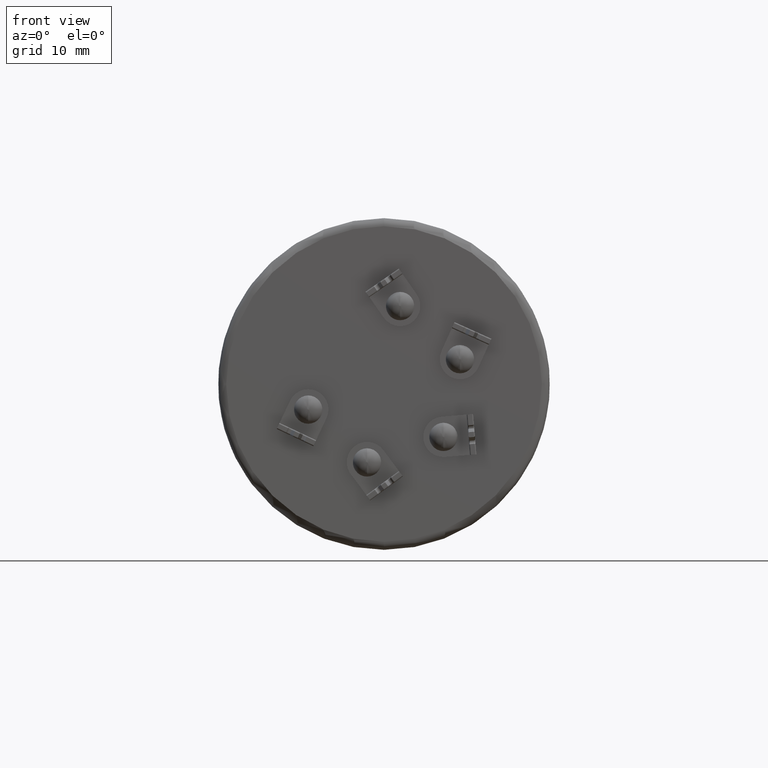
[diagram: clean part render]
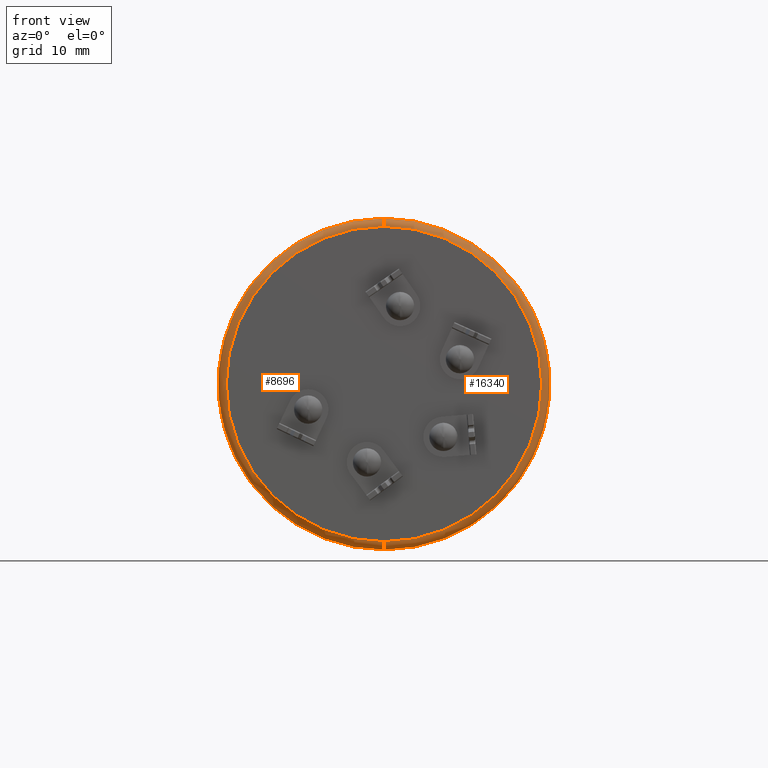
[diagram: same view with one multi-face feature highlighted, each face labeled with its STEP entity id]
A machine part, front view. The highlighted faces form ONE feature: a constant-radius fillet chain: 2 tangent blend faces with common blend radius 1 mm. The faces share edges in the B-rep.
Their STEP definitions:
[1] entity #16340 (Torus):
#114 = DIRECTION ( 'NONE',  ( -1.000000000000000000, 0.0000000000000000000, 0.0000000000000000000 ) ) ;
#121 = TOROIDAL_SURFACE ( 'NONE', #12906, 19.50000000000000000, 1.000000000000000000 ) ;
#2302 = EDGE_CURVE ( 'NONE', #9716, #7548, #3501, .T. ) ;
#2999 = CIRCLE ( 'NONE', #10821, 1.000000000000000900 ) ;
#3162 = DIRECTION ( 'NONE',  ( 0.0000000000000000000, 0.0000000000000000000, 1.000000000000000000 ) ) ;
#3410 = FACE_OUTER_BOUND ( 'NONE', #15124, .T. ) ;
#3501 = CIRCLE ( 'NONE', #6330, 1.000000000000000900 ) ;
#4437 = ORIENTED_EDGE ( 'NONE', *, *, #14541, .F. ) ;
#4650 = DIRECTION ( 'NONE',  ( 0.0000000000000000000, 1.000000000000000000, 0.0000000000000000000 ) ) ;
#5376 = DIRECTION ( 'NONE',  ( -0.0000000000000000000, -1.000000000000000000, -0.0000000000000000000 ) ) ;
#5622 = VERTEX_POINT ( 'NONE', #7171 ) ;
#5868 = CARTESIAN_POINT ( 'NONE',  ( 0.0000000000000000000, 0.0000000000000000000, 19.50000000000000000 ) ) ;
#6330 = AXIS2_PLACEMENT_3D ( 'NONE', #9263, #114, #10805 ) ;
#6848 = DIRECTION ( 'NONE',  ( 0.0000000000000000000, 1.000000000000000000, 0.0000000000000000000 ) ) ;
#7171 = CARTESIAN_POINT ( 'NONE',  ( 0.0000000000000000000, 1.000000000000000900, -20.50000000000000000 ) ) ;
#7548 = VERTEX_POINT ( 'NONE', #16205 ) ;
#7884 = CIRCLE ( 'NONE', #15750, 20.50000000000000000 ) ;
#8781 = AXIS2_PLACEMENT_3D ( 'NONE', #16032, #5376, #14618 ) ;
#9056 = CARTESIAN_POINT ( 'NONE',  ( 2.449293598294706500E-015, 0.0000000000000000000, -19.50000000000000000 ) ) ;
#9263 = CARTESIAN_POINT ( 'NONE',  ( 0.0000000000000000000, 1.000000000000000900, 19.50000000000000000 ) ) ;
#9295 = ORIENTED_EDGE ( 'NONE', *, *, #10958, .T. ) ;
#9716 = VERTEX_POINT ( 'NONE', #5868 ) ;
#10805 = DIRECTION ( 'NONE',  ( 0.0000000000000000000, 0.0000000000000000000, 1.000000000000000000 ) ) ;
#10821 = AXIS2_PLACEMENT_3D ( 'NONE', #11532, #15619, #15556 ) ;
#10958 = EDGE_CURVE ( 'NONE', #12701, #5622, #2999, .T. ) ;
#11460 = DIRECTION ( 'NONE',  ( 0.0000000000000000000, 0.0000000000000000000, 1.000000000000000000 ) ) ;
#11532 = CARTESIAN_POINT ( 'NONE',  ( 2.388061258337338900E-015, 1.000000000000000900, -19.50000000000000000 ) ) ;
#12701 = VERTEX_POINT ( 'NONE', #9056 ) ;
#12821 = CARTESIAN_POINT ( 'NONE',  ( 0.0000000000000000000, 1.000000000000000900, 0.0000000000000000000 ) ) ;
#12906 = AXIS2_PLACEMENT_3D ( 'NONE', #16231, #6848, #3162 ) ;
#13665 = EDGE_CURVE ( 'NONE', #12701, #9716, #14050, .T. ) ;
#14050 = CIRCLE ( 'NONE', #8781, 19.50000000000000000 ) ;
#14541 = EDGE_CURVE ( 'NONE', #7548, #5622, #7884, .T. ) ;
#14618 = DIRECTION ( 'NONE',  ( 0.0000000000000000000, 0.0000000000000000000, 1.000000000000000000 ) ) ;
#14794 = ORIENTED_EDGE ( 'NONE', *, *, #2302, .F. ) ;
#14885 = ORIENTED_EDGE ( 'NONE', *, *, #13665, .F. ) ;
#15124 = EDGE_LOOP ( 'NONE', ( #14885, #9295, #4437, #14794 ) ) ;
#15556 = DIRECTION ( 'NONE',  ( 1.224646799147353500E-016, 0.0000000000000000000, -1.000000000000000000 ) ) ;
#15619 = DIRECTION ( 'NONE',  ( 1.000000000000000000, -0.0000000000000000000, 1.224646799147353200E-016 ) ) ;
#15750 = AXIS2_PLACEMENT_3D ( 'NONE', #12821, #4650, #11460 ) ;
#16032 = CARTESIAN_POINT ( 'NONE',  ( 0.0000000000000000000, 0.0000000000000000000, 0.0000000000000000000 ) ) ;
#16205 = CARTESIAN_POINT ( 'NONE',  ( 2.510525938252074500E-015, 1.000000000000000900, 20.50000000000000000 ) ) ;
#16231 = CARTESIAN_POINT ( 'NONE',  ( 0.0000000000000000000, 1.000000000000000900, 0.0000000000000000000 ) ) ;
#16340 = ADVANCED_FACE ( 'NONE', ( #3410 ), #121, .T. ) ;
[2] entity #8696 (Torus):
#114 = DIRECTION ( 'NONE',  ( -1.000000000000000000, 0.0000000000000000000, 0.0000000000000000000 ) ) ;
#1318 = EDGE_LOOP ( 'NONE', ( #10122, #16963, #1450, #7664 ) ) ;
#1450 = ORIENTED_EDGE ( 'NONE', *, *, #2302, .T. ) ;
#1683 = AXIS2_PLACEMENT_3D ( 'NONE', #6089, #4649, #7336 ) ;
#2302 = EDGE_CURVE ( 'NONE', #9716, #7548, #3501, .T. ) ;
#2624 = EDGE_CURVE ( 'NONE', #5622, #7548, #16660, .T. ) ;
#2933 = FACE_OUTER_BOUND ( 'NONE', #1318, .T. ) ;
#2999 = CIRCLE ( 'NONE', #10821, 1.000000000000000900 ) ;
#3501 = CIRCLE ( 'NONE', #6330, 1.000000000000000900 ) ;
#4649 = DIRECTION ( 'NONE',  ( 0.0000000000000000000, 1.000000000000000000, 0.0000000000000000000 ) ) ;
#4768 = TOROIDAL_SURFACE ( 'NONE', #1683, 19.50000000000000000, 1.000000000000000000 ) ;
#5622 = VERTEX_POINT ( 'NONE', #7171 ) ;
#5868 = CARTESIAN_POINT ( 'NONE',  ( 0.0000000000000000000, 0.0000000000000000000, 19.50000000000000000 ) ) ;
#6089 = CARTESIAN_POINT ( 'NONE',  ( 0.0000000000000000000, 1.000000000000000900, 0.0000000000000000000 ) ) ;
#6298 = CARTESIAN_POINT ( 'NONE',  ( 0.0000000000000000000, 1.000000000000000900, 0.0000000000000000000 ) ) ;
#6330 = AXIS2_PLACEMENT_3D ( 'NONE', #9263, #114, #10805 ) ;
#6496 = EDGE_CURVE ( 'NONE', #9716, #12701, #14684, .T. ) ;
#7171 = CARTESIAN_POINT ( 'NONE',  ( 0.0000000000000000000, 1.000000000000000900, -20.50000000000000000 ) ) ;
#7336 = DIRECTION ( 'NONE',  ( 0.0000000000000000000, 0.0000000000000000000, 1.000000000000000000 ) ) ;
#7548 = VERTEX_POINT ( 'NONE', #16205 ) ;
#7664 = ORIENTED_EDGE ( 'NONE', *, *, #2624, .F. ) ;
#8390 = CARTESIAN_POINT ( 'NONE',  ( 0.0000000000000000000, 0.0000000000000000000, 0.0000000000000000000 ) ) ;
#8696 = ADVANCED_FACE ( 'NONE', ( #2933 ), #4768, .T. ) ;
#8952 = AXIS2_PLACEMENT_3D ( 'NONE', #8390, #16182, #12282 ) ;
#9056 = CARTESIAN_POINT ( 'NONE',  ( 2.449293598294706500E-015, 0.0000000000000000000, -19.50000000000000000 ) ) ;
#9263 = CARTESIAN_POINT ( 'NONE',  ( 0.0000000000000000000, 1.000000000000000900, 19.50000000000000000 ) ) ;
#9716 = VERTEX_POINT ( 'NONE', #5868 ) ;
#10122 = ORIENTED_EDGE ( 'NONE', *, *, #10958, .F. ) ;
#10348 = DIRECTION ( 'NONE',  ( 0.0000000000000000000, 0.0000000000000000000, 1.000000000000000000 ) ) ;
#10805 = DIRECTION ( 'NONE',  ( 0.0000000000000000000, 0.0000000000000000000, 1.000000000000000000 ) ) ;
#10821 = AXIS2_PLACEMENT_3D ( 'NONE', #11532, #15619, #15556 ) ;
#10958 = EDGE_CURVE ( 'NONE', #12701, #5622, #2999, .T. ) ;
#11532 = CARTESIAN_POINT ( 'NONE',  ( 2.388061258337338900E-015, 1.000000000000000900, -19.50000000000000000 ) ) ;
#12282 = DIRECTION ( 'NONE',  ( 0.0000000000000000000, 0.0000000000000000000, 1.000000000000000000 ) ) ;
#12701 = VERTEX_POINT ( 'NONE', #9056 ) ;
#14684 = CIRCLE ( 'NONE', #8952, 19.50000000000000000 ) ;
#15221 = AXIS2_PLACEMENT_3D ( 'NONE', #6298, #16814, #10348 ) ;
#15556 = DIRECTION ( 'NONE',  ( 1.224646799147353500E-016, 0.0000000000000000000, -1.000000000000000000 ) ) ;
#15619 = DIRECTION ( 'NONE',  ( 1.000000000000000000, -0.0000000000000000000, 1.224646799147353200E-016 ) ) ;
#16182 = DIRECTION ( 'NONE',  ( -0.0000000000000000000, -1.000000000000000000, -0.0000000000000000000 ) ) ;
#16205 = CARTESIAN_POINT ( 'NONE',  ( 2.510525938252074500E-015, 1.000000000000000900, 20.50000000000000000 ) ) ;
#16660 = CIRCLE ( 'NONE', #15221, 20.50000000000000000 ) ;
#16814 = DIRECTION ( 'NONE',  ( 0.0000000000000000000, 1.000000000000000000, 0.0000000000000000000 ) ) ;
#16963 = ORIENTED_EDGE ( 'NONE', *, *, #6496, .F. ) ;